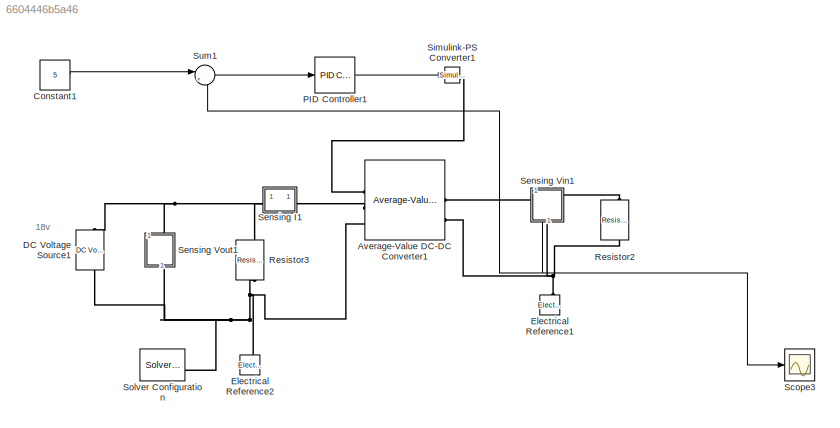
MODEL slx_6604446b5a46
KIND model
CONFIG AbsTol = auto
CONFIG EnableMultiTasking = off
CONFIG FixedStep = Ts
CONFIG InitFcn = Ts=1e-3;
CONFIG MaxStep = auto
CONFIG MinStep = auto
CONFIG PostLoadFcn = Ts=1e-3;
CONFIG RelTol = 1e-3
CONFIG SampleTimeConstraint = Unconstrained
CONFIG SolverName = FixedStepAuto
CONFIG StartTime = 0.0
CONFIG StopTime = 10.0
BLOCK [Reference] Average-Value DC-DC Converter1  REF=ee_lib/Semiconductors &
Converters/Converters/Average-Value DC-DC
Converter
  SourceBlock = ee_lib/Semiconductors &\nConverters/Converters/Average-Value DC-DC\nConverter
  SourceType = Average-Value DC-DC\nConverter
BLOCK [Constant] Constant1
  Value = 5
BLOCK [Reference] DC Voltage Source1  REF=fl_lib/Electrical/Electrical Sources/DC Voltage Source
  NameLocation = right
  SourceBlock = fl_lib/Electrical/Electrical Sources/DC Voltage Source
  SourceType = DC Voltage Source
BLOCK [Reference] Electrical Reference1  REF=fl_lib/Electrical/Electrical Elements/Electrical Reference
  NameLocation = right
  SourceBlock = fl_lib/Electrical/Electrical Elements/Electrical Reference
  SourceType = Electrical Reference
BLOCK [Reference] Electrical Reference2  REF=fl_lib/Electrical/Electrical Elements/Electrical Reference
  NameLocation = right
  SourceBlock = fl_lib/Electrical/Electrical Elements/Electrical Reference
  SourceType = Electrical Reference
BLOCK [Reference] PID Controller1  REF=slpidlib/PID Controller
  SourceBlock = slpidlib/PID Controller
  SourceType = PID 1dof
BLOCK [Reference] Resistor2  REF=fl_lib/Electrical/Electrical Elements/Resistor
  NameLocation = left
  SourceBlock = fl_lib/Electrical/Electrical Elements/Resistor
  SourceType = Resistor
BLOCK [Reference] Resistor3  REF=fl_lib/Electrical/Electrical Elements/Resistor
  NameLocation = left
  SourceBlock = fl_lib/Electrical/Electrical Elements/Resistor
  SourceType = Resistor
BLOCK [Scope] Scope3
  Floating = off
  NumInputPorts = 1
  ScopeSpecificationString = Simulink.scopes.TimeScopeBlockCfg('CurrentConfiguration', extmgr.ConfigurationSet(extmgr.Configuration('Core','General UI',true),extmgr.Configuration('Core','Source UI',true),extmgr.Configuration('Sources','WiredSimulink',true,'DataLoggingVariableName','ScopeData1'),extmgr.Configuration('Visuals','Time Domain',true,'SerializedDisplays',{struct('MinYLimReal','-2.2275','MaxYLimReal','20.0475','YLabe...<+1457ch>
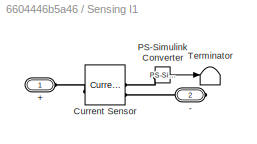
BLOCK [SubSystem] Sensing I1
BLOCK [PMIOPort] Sensing I1/+
  Side = Left
BLOCK [PMIOPort] Sensing I1/-
  Port = 2
  Side = Right
BLOCK [Reference] Sensing I1/Current Sensor  REF=fl_lib/Electrical/Electrical Sensors/Current Sensor
  SourceBlock = fl_lib/Electrical/Electrical Sensors/Current Sensor
  SourceType = Current Sensor
BLOCK [Reference] Sensing I1/PS-Simulink Converter  REF=nesl_utility/PS-Simulink
Converter
  SourceBlock = nesl_utility/PS-Simulink\nConverter
  SourceType = PS-Simulink\nConverter
BLOCK [Terminator] Sensing I1/Terminator
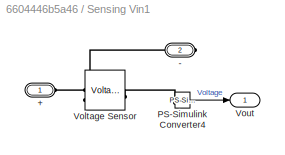
BLOCK [SubSystem] Sensing Vin1
  NameLocation = right
BLOCK [PMIOPort] Sensing Vin1/+
  Side = Left
BLOCK [PMIOPort] Sensing Vin1/-
  Port = 2
  Side = Right
BLOCK [Reference] Sensing Vin1/PS-Simulink Converter4  REF=nesl_utility/PS-Simulink
Converter
  SourceBlock = nesl_utility/PS-Simulink\nConverter
  SourceType = PS-Simulink\nConverter
BLOCK [Reference] Sensing Vin1/Voltage Sensor  REF=fl_lib/Electrical/Electrical Sensors/Voltage Sensor
  SourceBlock = fl_lib/Electrical/Electrical Sensors/Voltage Sensor
  SourceType = Voltage Sensor
BLOCK [Outport] Sensing Vin1/Vout
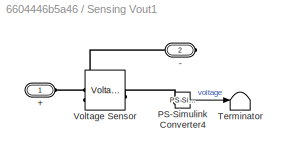
BLOCK [SubSystem] Sensing Vout1
  NameLocation = right
BLOCK [PMIOPort] Sensing Vout1/+
  Side = Left
BLOCK [PMIOPort] Sensing Vout1/-
  Port = 2
  Side = Right
BLOCK [Reference] Sensing Vout1/PS-Simulink Converter4  REF=nesl_utility/PS-Simulink
Converter
  SourceBlock = nesl_utility/PS-Simulink\nConverter
  SourceType = PS-Simulink\nConverter
BLOCK [Terminator] Sensing Vout1/Terminator
BLOCK [Reference] Sensing Vout1/Voltage Sensor  REF=fl_lib/Electrical/Electrical Sensors/Voltage Sensor
  SourceBlock = fl_lib/Electrical/Electrical Sensors/Voltage Sensor
  SourceType = Voltage Sensor
BLOCK [Reference] Simulink-PS Converter1  REF=nesl_utility/Simulink-PS
Converter
  SourceBlock = nesl_utility/Simulink-PS\nConverter
  SourceType = Simulink-PS\nConverter
BLOCK [Reference] Solver Configuration  REF=nesl_utility/Solver
Configuration
  SourceBlock = nesl_utility/Solver\nConfiguration
  SourceType = Solver\nConfiguration
BLOCK [Sum] Sum1
  Inputs = |+-
ANNOTATION (root): 18v
LINE Constant1:1 -> Sum1:1
LINE PID Controller1:1 -> Simulink-PS Converter1:1
LINE Sensing I1/PS-Simulink Converter:1 -> Sensing I1/Terminator:1
LINE Sensing Vin1/PS-Simulink Converter4:1 -> Sensing Vin1/Vout:1
NET Sensing Vin1:1 -> Scope3:1, Sum1:2
LINE Sensing Vout1/PS-Simulink Converter4:1 -> Sensing Vout1/Terminator:1
LINE Sum1:1 -> PID Controller1:1
PLINE Average-Value DC-DC Converter1:LConn1 -- Simulink-PS Converter1:RConn1
PLINE Average-Value DC-DC Converter1:LConn2 -- Sensing I1:RConn1
PNET net1: Average-Value DC-DC Converter1:LConn3 -- DC Voltage Source1:RConn1 -- Electrical Reference2:LConn1 -- Resistor3:RConn1 -- Sensing Vout1:RConn1 -- Solver Configuration:RConn1
PNET net2: Average-Value DC-DC Converter1:RConn1 -- Resistor2:LConn1 -- Sensing Vin1:LConn1
PNET net3: Average-Value DC-DC Converter1:RConn2 -- Electrical Reference1:LConn1 -- Resistor2:RConn1 -- Sensing Vin1:RConn1
PNET net4: DC Voltage Source1:LConn1 -- Resistor3:LConn1 -- Sensing I1:LConn1 -- Sensing Vout1:LConn1
PLINE Sensing I1/+:RConn1 -- Sensing I1/Current Sensor:LConn1
PLINE Sensing I1/-:RConn1 -- Sensing I1/Current Sensor:RConn2
PLINE Sensing I1/Current Sensor:RConn1 -- Sensing I1/PS-Simulink Converter:LConn1
PLINE Sensing Vin1/+:RConn1 -- Sensing Vin1/Voltage Sensor:LConn1
PLINE Sensing Vin1/-:RConn1 -- Sensing Vin1/Voltage Sensor:RConn2
PLINE Sensing Vin1/PS-Simulink Converter4:LConn1 -- Sensing Vin1/Voltage Sensor:RConn1
PLINE Sensing Vout1/+:RConn1 -- Sensing Vout1/Voltage Sensor:LConn1
PLINE Sensing Vout1/-:RConn1 -- Sensing Vout1/Voltage Sensor:RConn2
PLINE Sensing Vout1/PS-Simulink Converter4:LConn1 -- Sensing Vout1/Voltage Sensor:RConn1
note: NET lines group one-source signal fan-out (src -> all destinations, sorted); 1:1 wires keep LINE; PNET lines group multi-terminal physical nets as a canonical sorted terminal list (undirected conserving connections); 2-terminal nets keep the pairwise PLINE form
